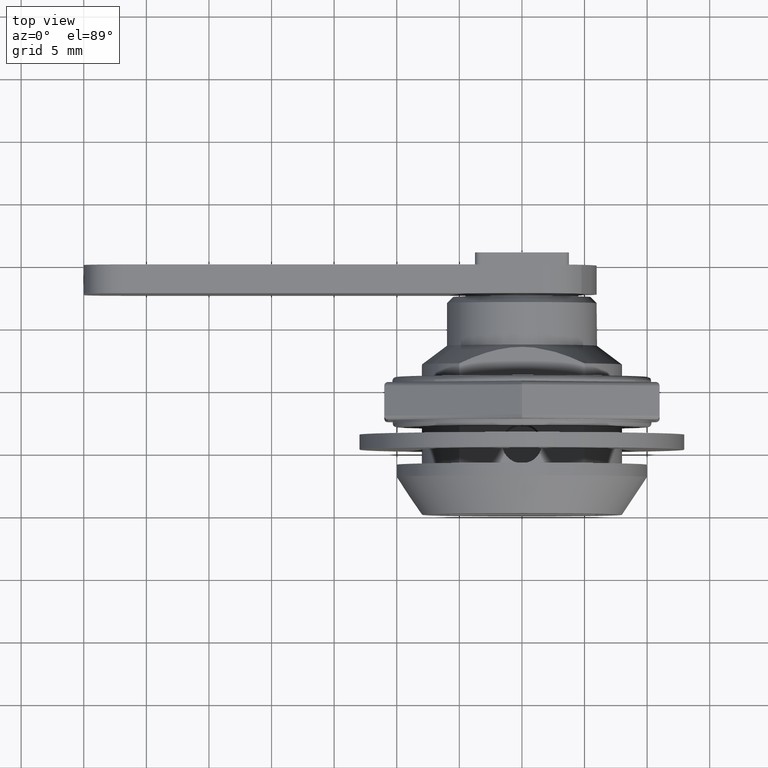
[diagram: clean part render]
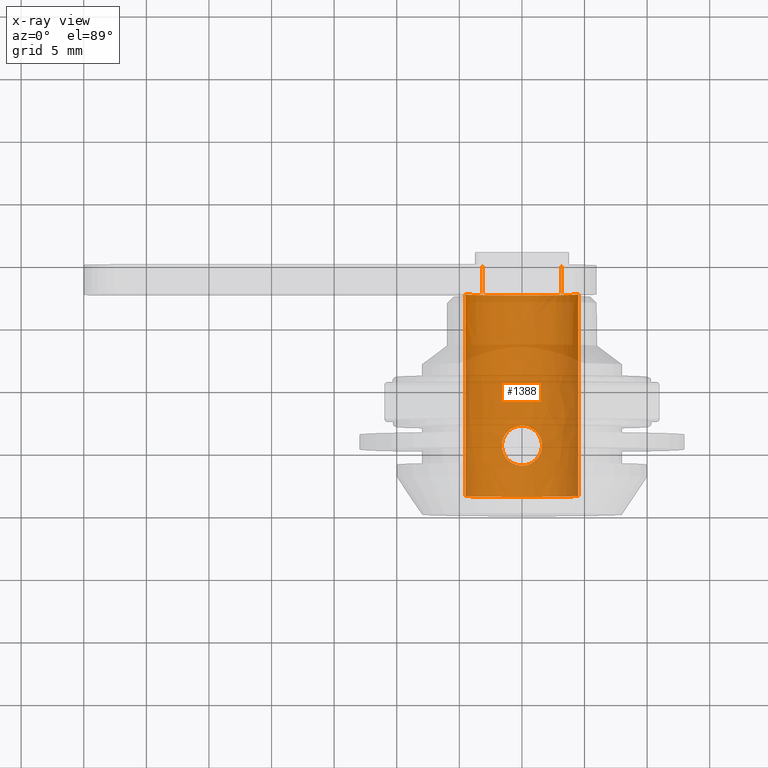
[diagram: x-ray — body ghosted, one internal face saturated and labeled with its STEP entity id]
A machine part, top view, then the same camera in x-ray: the body is ghosted and one INTERNAL B-rep face — a face not visible from any outside direction — is saturated and labeled: STEP entity #1388.
In plain terms, the highlighted face is a freeform B-spline surface patch.
Its self-contained STEP definition (entity closure, byte-faithful):
#519=CARTESIAN_POINT('',(-1.054356427544259,4.396522455043579,-4.374738155844502));
#520=VERTEX_POINT('',#519);
#521=CARTESIAN_POINT('',(-0.000590597931798,4.000000105548997,-4.499999961822872));
#522=VERTEX_POINT('',#521);
#523=CARTESIAN_POINT('',(-1.054356427544259,4.396522455043579,-4.374738155844502));
#524=CARTESIAN_POINT('',(-1.002881964715816,4.351411937511979,-4.387145458734838));
#525=CARTESIAN_POINT('',(-0.948596320963804,4.309698631075681,-4.399267054328381));
#526=CARTESIAN_POINT('',(-0.848251395131384,4.242370959246393,-4.419547673079403));
#527=CARTESIAN_POINT('',(-0.803185920776026,4.215213212073405,-4.427989136962553));
#528=CARTESIAN_POINT('',(-0.710607179049737,4.165502840584244,-4.443786078481630));
#529=CARTESIAN_POINT('',(-0.663391061197338,4.143079818799937,-4.451097179779044));
#530=CARTESIAN_POINT('',(-0.518997108087333,4.082928521187584,-4.471026780630580));
#531=CARTESIAN_POINT('',(-0.419100301706845,4.052244675719065,-4.481648089136178));
#532=CARTESIAN_POINT('',(-0.263470360488579,4.020956456879764,-4.492581238707986));
#533=CARTESIAN_POINT('',(-0.210643652376092,4.013050127579481,-4.495374136999204));
#534=CARTESIAN_POINT('',(-0.105626020991738,4.002619086723718,-4.499066930567387));
#535=CARTESIAN_POINT('',(-0.053111249833334,4.000019753307123,-4.499993045675499));
#536=CARTESIAN_POINT('',(-0.000590597931798,4.000000105548997,-4.499999961822872));
#537=B_SPLINE_CURVE_WITH_KNOTS('',3,(#523,#524,#525,#526,#527,#528,#529,#530,#531,#532,#533,#534,#535,#536),.UNSPECIFIED.,.F.,.U.,(4,2,2,2,2,2,4),(0.385583560682670,0.406249999999995,0.421874999999996,0.437499999999996,0.468749999999996,0.484374999999996,0.499999999999996),.UNSPECIFIED.);
#538=EDGE_CURVE('',#520,#522,#537,.T.);
#634=CARTESIAN_POINT('',(-1.141201278407970,6.721454611867972,-4.352890713591815));
#635=VERTEX_POINT('',#634);
#641=CARTESIAN_POINT('',(-1.084202E-015,7.200000000000109,-4.499999999999999));
#642=VERTEX_POINT('',#641);
#643=CARTESIAN_POINT('',(-1.084202E-015,7.200000000000109,-4.499999999999999));
#644=CARTESIAN_POINT('',(-0.106644526809201,7.200000000000111,-4.499999999999999));
#645=CARTESIAN_POINT('',(-0.211340840411174,7.189445826297849,-4.496216805880243));
#646=CARTESIAN_POINT('',(-0.365620001473151,7.158548286359256,-4.485418558350959));
#647=CARTESIAN_POINT('',(-0.416582237093022,7.145718663253454,-4.480963786126079));
#648=CARTESIAN_POINT('',(-0.517566352000592,7.114896701913454,-4.470425291190046));
#649=CARTESIAN_POINT('',(-0.567501928418370,7.096892199195922,-4.464339171896235));
#650=CARTESIAN_POINT('',(-0.712562194804528,7.036396149264295,-4.444298126867469));
#651=CARTESIAN_POINT('',(-0.804147896041606,6.987164153097158,-4.428448790463530));
#652=CARTESIAN_POINT('',(-0.934107053679783,6.900062909574958,-4.402203669116434));
#653=CARTESIAN_POINT('',(-0.976372913726798,6.868626985512403,-4.392994886969727));
#654=CARTESIAN_POINT('',(-1.056895239337034,6.802368890189837,-4.374320586864689));
#655=CARTESIAN_POINT('',(-1.095274853013518,6.767496637701044,-4.364836751521751));
#656=CARTESIAN_POINT('',(-1.134970150101099,6.727768788195634,-4.354521013265316));
#657=CARTESIAN_POINT('',(-1.138092617883042,6.724617913688502,-4.353705969310479));
#658=CARTESIAN_POINT('',(-1.141201278407970,6.721454611867972,-4.352890713591815));
#659=B_SPLINE_CURVE_WITH_KNOTS('',3,(#643,#644,#645,#646,#647,#648,#649,#650,#651,#652,#653,#654,#655,#656,#657,#658),.UNSPECIFIED.,.F.,.U.,(4,2,2,2,2,2,2,4),(0.0,0.031249999999999,0.046874999999999,0.062499999999999,0.093749999999998,0.109374999999998,0.124999999999997,0.126340144934590),.UNSPECIFIED.);
#660=EDGE_CURVE('',#642,#635,#659,.T.);
#662=CARTESIAN_POINT('',(-0.000590597931798,4.000000105548997,-4.499999961822872));
#663=CARTESIAN_POINT('',(0.051930285147234,3.999980715391873,-4.500006855451914));
#664=CARTESIAN_POINT('',(0.104457044242427,4.002541005625959,-4.499094550580655));
#665=CARTESIAN_POINT('',(0.209522477495320,4.012899863202513,-4.495426940856749));
#666=CARTESIAN_POINT('',(0.262371788086469,4.020771944571706,-4.492645815149589));
#667=CARTESIAN_POINT('',(0.418030499402142,4.051952414648476,-4.481748766255061));
#668=CARTESIAN_POINT('',(0.518146600431573,4.082607685458499,-4.471134040862291));
#669=CARTESIAN_POINT('',(0.663095891290723,4.142933538614220,-4.451143978425933));
#670=CARTESIAN_POINT('',(0.710698212336893,4.165540161514721,-4.443772961348111));
#671=CARTESIAN_POINT('',(0.803381156064385,4.215317474896600,-4.427955374561503));
#672=CARTESIAN_POINT('',(0.848087383229954,4.242264059448966,-4.419579780053146));
#673=CARTESIAN_POINT('',(0.977527514359135,4.329080516278437,-4.393425830267843));
#674=CARTESIAN_POINT('',(1.057629146482051,4.394863452334843,-4.374614776680451));
#675=CARTESIAN_POINT('',(1.168517387989092,4.505787730159891,-4.345805515428292));
#676=CARTESIAN_POINT('',(1.203669600767674,4.544598184684134,-4.336167968788291));
#677=CARTESIAN_POINT('',(1.269535212011252,4.624821121512672,-4.317343339001580));
#678=CARTESIAN_POINT('',(1.331263664901528,4.707942811565199,-4.298890519100937));
#679=CARTESIAN_POINT('',(1.384826989102733,4.796894028082074,-4.281697182385177));
#680=CARTESIAN_POINT('',(1.434230368696016,4.888868337515697,-4.265402654017855));
#681=CARTESIAN_POINT('',(1.456962853555373,4.936659869141036,-4.257665575919842));
#682=CARTESIAN_POINT('',(1.517536084723148,5.082189441053562,-4.236615616693988));
#683=CARTESIAN_POINT('',(1.548011574908382,5.182081390745575,-4.225416625073901));
#684=CARTESIAN_POINT('',(1.578989258018593,5.336292068635154,-4.213895382652161));
#685=CARTESIAN_POINT('',(1.586841102350622,5.388429157715676,-4.210934230383522));
#686=CARTESIAN_POINT('',(1.597386058154605,5.494242321188721,-4.206945395169550));
#687=CARTESIAN_POINT('',(1.600004673129959,5.547418445698825,-4.205946391240307));
#688=CARTESIAN_POINT('',(1.599990634834588,5.705589128244441,-4.205951731599148));
#689=CARTESIAN_POINT('',(1.589658864911282,5.810127083310666,-4.209925606529904));
#690=CARTESIAN_POINT('',(1.558572759537598,5.965572328972458,-4.221489450780870));
#691=CARTESIAN_POINT('',(1.545523146361554,6.017284991873046,-4.226301644146338));
#692=CARTESIAN_POINT('',(1.514768123053333,6.117924795470650,-4.237421965846078));
#693=CARTESIAN_POINT('',(1.479272208982997,6.216363347259560,-4.250070417865359));
#694=CARTESIAN_POINT('',(1.434516129388302,6.310559172555636,-4.265306623475321));
#695=CARTESIAN_POINT('',(1.385093128909376,6.402650538793942,-4.281611161932585));
#696=CARTESIAN_POINT('',(1.357887722047230,6.447862582543259,-4.290346016702222));
#697=CARTESIAN_POINT('',(1.270573156488064,6.578040874536375,-4.317332033662447));
#698=CARTESIAN_POINT('',(1.204772873708272,6.657961322593215,-4.336388440118227));
#699=CARTESIAN_POINT('',(1.094756606015902,6.767988841092395,-4.364967762628736));
#700=CARTESIAN_POINT('',(1.056143506275655,6.803042217681110,-4.374504631555820));
#701=CARTESIAN_POINT('',(0.975106208332557,6.869613155982020,-4.393278702725660));
#702=CARTESIAN_POINT('',(0.933259858356389,6.900662352134396,-4.402381608425642));
#703=CARTESIAN_POINT('',(0.803808132719424,6.987327847226440,-4.428503544479676));
#704=CARTESIAN_POINT('',(0.712329398016229,7.036529365361920,-4.444340681658329));
#705=CARTESIAN_POINT('',(0.566913239154308,7.097119509751455,-4.464415269187231));
#706=CARTESIAN_POINT('',(0.516837189747980,7.115139941672992,-4.470507927226786));
#707=CARTESIAN_POINT('',(0.416153974797904,7.145828448702947,-4.481001860897187));
#708=CARTESIAN_POINT('',(0.365315159257297,7.158616465239462,-4.485442301648410));
#709=CARTESIAN_POINT('',(0.211320851080557,7.189435529706214,-4.496213376375648));
#710=CARTESIAN_POINT('',(0.106644526809202,7.200000000000109,-4.500000000000000));
#711=CARTESIAN_POINT('',(-1.138412E-015,7.200000000000109,-4.499999999999999));
#712=B_SPLINE_CURVE_WITH_KNOTS('',3,(#662,#663,#664,#665,#666,#667,#668,#669,#670,#671,#672,#673,#674,#675,#676,#677,#678,#679,#680,#681,#682,#683,#684,#685,#686,#687,#688,#689,#690,#691,#692,#693,#694,#695,#696,#697,#698,#699,#700,#701,#702,#703,#704,#705,#706,#707,#708,#709,#710,#711),.UNSPECIFIED.,.F.,.U.,(4,2,2,2,2,2,2,2,1,2,2,2,2,2,2,2,1,2,2,2,2,2,2,2,2,4),(0.499999999999996,0.515624999999996,0.531249999999996,0.562499999999997,0.578124999999997,0.593749999999997,0.624999999999997,0.640624999999997,0.656249999999998,0.671874999999998,0.687499999999998,0.718749999999998,0.734374999999998,0.749999999999998,0.781249999999998,0.796874999999998,0.812499999999998,0.828124999999999,0.843749999999999,0.874999999999999,0.890624999999999,0.906249999999999,0.937499999999999,0.953125000000000,0.968750000000000,1.0),.UNSPECIFIED.);
#713=EDGE_CURVE('',#522,#642,#712,.T.);
#736=CARTESIAN_POINT('',(-1.141201278407970,6.721454611867972,-4.352890713591815));
#737=CARTESIAN_POINT('',(-1.210593877893924,6.650850319073463,-4.334698579833930));
#738=CARTESIAN_POINT('',(-1.273387756557766,6.573950768887507,-4.316469235462184));
#739=CARTESIAN_POINT('',(-1.387742781381710,6.403237767138266,-4.281110321753358));
#740=CARTESIAN_POINT('',(-1.436820990040375,6.311598363484674,-4.264661296558764));
#741=CARTESIAN_POINT('',(-1.496872398226868,6.167518312925613,-4.243797256427736));
#742=CARTESIAN_POINT('',(-1.514610594300624,6.118380140613603,-4.237477451111903));
#743=CARTESIAN_POINT('',(-1.545387141504528,6.017780963592505,-4.226350447869916));
#744=CARTESIAN_POINT('',(-1.558453543868293,5.966061459555799,-4.221532442415155));
#745=CARTESIAN_POINT('',(-1.589547246248479,5.810871282789563,-4.209966589529199));
#746=CARTESIAN_POINT('',(-1.599921978708118,5.706475822292407,-4.205976553084533));
#747=CARTESIAN_POINT('',(-1.600034155554577,5.548475385021163,-4.205933729465114));
#748=CARTESIAN_POINT('',(-1.597459519370076,5.495394445890469,-4.206915956975348));
#749=CARTESIAN_POINT('',(-1.586983669913865,5.389522805011184,-4.210878867190240));
#750=CARTESIAN_POINT('',(-1.579160114321292,5.337323801683541,-4.213829690707757));
#751=CARTESIAN_POINT('',(-1.548223441878427,5.182841252215593,-4.225337105059505));
#752=CARTESIAN_POINT('',(-1.517718209201503,5.082653774502266,-4.236550247997142));
#753=CARTESIAN_POINT('',(-1.456909799385761,4.936540551715911,-4.257682275922215));
#754=CARTESIAN_POINT('',(-1.434316884753321,4.889062213525960,-4.265371376025918));
#755=CARTESIAN_POINT('',(-1.385006667281463,4.797221920952092,-4.281636857007294));
#756=CARTESIAN_POINT('',(-1.331462803797769,4.708235514602065,-4.298827737251188));
#757=CARTESIAN_POINT('',(-1.269526505345676,4.624806770432523,-4.317345492518900));
#758=CARTESIAN_POINT('',(-1.203295226177778,4.544169090421435,-4.336271479341644));
#759=CARTESIAN_POINT('',(-1.167983658505234,4.505244218918500,-4.345945177633516));
#760=CARTESIAN_POINT('',(-1.106341106855537,4.443616338991190,-4.361955372519377));
#761=CARTESIAN_POINT('',(-1.080717397530118,4.419623920588284,-4.368384229013051));
#762=CARTESIAN_POINT('',(-1.054356427544259,4.396522455043579,-4.374738155844502));
#763=B_SPLINE_CURVE_WITH_KNOTS('',3,(#736,#737,#738,#739,#740,#741,#742,#743,#744,#745,#746,#747,#748,#749,#750,#751,#752,#753,#754,#755,#756,#757,#758,#759,#760,#761,#762),.UNSPECIFIED.,.F.,.U.,(4,2,2,2,2,2,2,2,2,2,1,2,2,4),(0.126340144934590,0.156249999999997,0.187499999999996,0.203124999999996,0.218749999999995,0.249999999999995,0.265624999999995,0.281249999999995,0.312499999999995,0.328124999999995,0.343749999999995,0.359374999999995,0.374999999999995,0.385583560682670),.UNSPECIFIED.);
#764=EDGE_CURVE('',#635,#520,#763,.T.);
#1071=CARTESIAN_POINT('',(4.496759450483429,1.500000000000113,-0.170746726045739));
#1072=VERTEX_POINT('',#1071);
#1090=CARTESIAN_POINT('',(4.496759211514306,17.600000000000001,-0.170753019478084));
#1091=VERTEX_POINT('',#1090);
#1092=CARTESIAN_POINT('',(4.496759211514306,17.600000000000001,-0.170753019478084));
#1093=CARTESIAN_POINT('',(4.496759450483429,1.500000000000113,-0.170746726045739));
#1094=QUASI_UNIFORM_CURVE('',1,(#1092,#1093),.UNSPECIFIED.,.F.,.U.);
#1095=EDGE_CURVE('',#1091,#1072,#1094,.T.);
#1185=CARTESIAN_POINT('',(-4.496759211514306,17.600000000000001,0.170753019478084));
#1186=VERTEX_POINT('',#1185);
#1200=CARTESIAN_POINT('',(-4.496759450483429,1.500000000000113,0.170746726045738));
#1201=VERTEX_POINT('',#1200);
#1202=CARTESIAN_POINT('',(-4.496759211514306,17.600000000000001,0.170753019478084));
#1203=CARTESIAN_POINT('',(-4.496759450483429,1.500000000000113,0.170746726045738));
#1204=QUASI_UNIFORM_CURVE('',1,(#1202,#1203),.UNSPECIFIED.,.F.,.U.);
#1205=EDGE_CURVE('',#1186,#1201,#1204,.T.);
#1229=CARTESIAN_POINT('',(-4.496759233757365,20.359999999999999,0.170752433709924));
#1230=CARTESIAN_POINT('',(-4.667511667467289,20.360000000000003,-4.326006800047441));
#1231=CARTESIAN_POINT('',(-0.170752433709924,20.359999999999999,-4.496759233757365));
#1232=CARTESIAN_POINT('',(4.326006800047440,20.360000000000003,-4.667511667467289));
#1233=CARTESIAN_POINT('',(4.496759233757365,20.359999999999999,-0.170752433709924));
#1234=CARTESIAN_POINT('',(-4.496759233757365,1.028500000000118,0.170752433709924));
#1235=CARTESIAN_POINT('',(-4.667511667467289,1.028500000000118,-4.326006800047441));
#1236=CARTESIAN_POINT('',(-0.170752433709924,1.028500000000118,-4.496759233757365));
#1237=CARTESIAN_POINT('',(4.326006800047440,1.028500000000118,-4.667511667467289));
#1238=CARTESIAN_POINT('',(4.496759233757365,1.028500000000118,-0.170752433709924));
#1246=(BOUNDED_SURFACE()B_SPLINE_SURFACE(2,1,((#1229,#1234),(#1230,#1235),(#1231,#1236),(#1232,#1237),(#1233,#1238)),.UNSPECIFIED.,.F.,.F.,.U.)B_SPLINE_SURFACE_WITH_KNOTS((3,2,3),(2,2),(0.0,7.455844122715709,14.911688245431421),(0.0,19.331499999999892),.UNSPECIFIED.)GEOMETRIC_REPRESENTATION_ITEM()RATIONAL_B_SPLINE_SURFACE(((1.0,1.0),(0.707106781186548,0.707106781186548),(1.0,1.0),(0.707106781186548,0.707106781186548),(1.0,1.0)))REPRESENTATION_ITEM('')SURFACE());
#1247=CARTESIAN_POINT('',(0.0,1.500000000000115,-4.500000000000000));
#1248=VERTEX_POINT('',#1247);
#1249=CARTESIAN_POINT('',(0.0,1.500000000000115,-4.500000000000000));
#1250=CARTESIAN_POINT('',(4.332373111637863,1.500000000000115,-4.500000000000001));
#1251=CARTESIAN_POINT('',(4.496759450483429,1.500000000000113,-0.170746726045739));
#1259=(BOUNDED_CURVE()B_SPLINE_CURVE(2,(#1249,#1250,#1251),.UNSPECIFIED.,.F.,.U.)B_SPLINE_CURVE_WITH_KNOTS((3,3),(0.0,0.243342356394768),.UNSPECIFIED.)CURVE()GEOMETRIC_REPRESENTATION_ITEM()RATIONAL_B_SPLINE_CURVE((1.0,0.714906695847545,0.984815603093719))REPRESENTATION_ITEM(''));
#1260=EDGE_CURVE('',#1248,#1072,#1259,.T.);
#1261=ORIENTED_EDGE('',*,*,#1260,.F.);
#1262=CARTESIAN_POINT('',(-4.496759450483429,1.500000000000113,0.170746726045738));
#1263=CARTESIAN_POINT('',(-4.499999999999999,1.500000000000116,0.085404113718395));
#1264=CARTESIAN_POINT('',(-4.500000000000000,1.500000000000115,-3.061516E-016));
#1265=CARTESIAN_POINT('',(-4.500000000000000,1.500000000000116,-4.500000000000000));
#1266=CARTESIAN_POINT('',(0.0,1.500000000000115,-4.500000000000000));
#1274=(BOUNDED_CURVE()B_SPLINE_CURVE(2,(#1262,#1263,#1264,#1265,#1266),.UNSPECIFIED.,.F.,.U.)B_SPLINE_CURVE_WITH_KNOTS((3,2,3),(0.743342356394768,0.750000000000000,1.0),.UNSPECIFIED.)CURVE()GEOMETRIC_REPRESENTATION_ITEM()RATIONAL_B_SPLINE_CURVE((0.984815603093719,0.992200085339003,1.0,0.707106781186547,1.0))REPRESENTATION_ITEM(''));
#1275=EDGE_CURVE('',#1201,#1248,#1274,.T.);
#1276=ORIENTED_EDGE('',*,*,#1275,.F.);
#1277=ORIENTED_EDGE('',*,*,#1205,.F.);
#1278=CARTESIAN_POINT('',(-3.200000000000000,17.600000000000001,-3.163858403911275));
#1279=VERTEX_POINT('',#1278);
#1280=CARTESIAN_POINT('',(-4.496759211514307,17.599999999999998,0.170753019478084));
#1281=CARTESIAN_POINT('',(-4.570737991083675,17.600000000000001,-1.777462108158854));
#1282=CARTESIAN_POINT('',(-3.200000000000000,17.600000000000001,-3.163858403911275));
#1290=(BOUNDED_CURVE()B_SPLINE_CURVE(2,(#1280,#1281,#1282),.UNSPECIFIED.,.F.,.U.)B_SPLINE_CURVE_WITH_KNOTS((3,3),(0.476904494265826,1.0),.UNSPECIFIED.)CURVE()GEOMETRIC_REPRESENTATION_ITEM()RATIONAL_B_SPLINE_CURVE((0.855863743600290,0.848883520565683,1.0))REPRESENTATION_ITEM(''));
#1291=EDGE_CURVE('',#1186,#1279,#1290,.T.);
#1292=ORIENTED_EDGE('',*,*,#1291,.T.);
#1293=CARTESIAN_POINT('',(-3.200000000000000,19.899999999999999,-3.163858403911270));
#1294=VERTEX_POINT('',#1293);
#1295=CARTESIAN_POINT('',(-3.200000000000000,19.899999999999999,-3.163858403911270));
#1296=CARTESIAN_POINT('',(-3.200000000000000,17.600000000000001,-3.163858403911275));
#1297=QUASI_UNIFORM_CURVE('',1,(#1295,#1296),.UNSPECIFIED.,.F.,.U.);
#1298=EDGE_CURVE('',#1294,#1279,#1297,.T.);
#1299=ORIENTED_EDGE('',*,*,#1298,.F.);
#1300=CARTESIAN_POINT('',(-3.163858403911280,19.899999999999999,-3.200000000000000));
#1301=VERTEX_POINT('',#1300);
#1302=CARTESIAN_POINT('',(-3.200000000000002,19.899999999999999,-3.163858403911272));
#1303=CARTESIAN_POINT('',(-3.182031829550783,19.900000000000002,-3.182031829550807));
#1304=CARTESIAN_POINT('',(-3.163858403911279,19.899999999999999,-3.199999999999996));
#1312=(BOUNDED_CURVE()B_SPLINE_CURVE(2,(#1302,#1303,#1304),.UNSPECIFIED.,.F.,.U.)CURVE()GEOMETRIC_REPRESENTATION_ITEM()QUASI_UNIFORM_CURVE()RATIONAL_B_SPLINE_CURVE((1.0,0.999983873759258,1.0))REPRESENTATION_ITEM(''));
#1313=EDGE_CURVE('',#1294,#1301,#1312,.T.);
#1314=ORIENTED_EDGE('',*,*,#1313,.T.);
#1315=CARTESIAN_POINT('',(-3.163858403911275,17.600000000000001,-3.200000000000000));
#1316=VERTEX_POINT('',#1315);
#1317=CARTESIAN_POINT('',(-3.163858403911280,19.899999999999999,-3.200000000000000));
#1318=CARTESIAN_POINT('',(-3.163858403911275,17.600000000000001,-3.200000000000000));
#1319=QUASI_UNIFORM_CURVE('',1,(#1317,#1318),.UNSPECIFIED.,.F.,.U.);
#1320=EDGE_CURVE('',#1301,#1316,#1319,.T.);
#1321=ORIENTED_EDGE('',*,*,#1320,.T.);
#1322=CARTESIAN_POINT('',(3.163858403911270,17.600000000000001,-3.200000000000000));
#1323=VERTEX_POINT('',#1322);
#1324=CARTESIAN_POINT('',(-3.163858403911276,17.600000000000001,-3.199999999999999));
#1325=CARTESIAN_POINT('',(-4.336809E-015,17.600000000000005,-6.328124999999998));
#1326=CARTESIAN_POINT('',(3.163858403911272,17.600000000000001,-3.200000000000003));
#1334=(BOUNDED_CURVE()B_SPLINE_CURVE(2,(#1324,#1325,#1326),.UNSPECIFIED.,.F.,.U.)CURVE()GEOMETRIC_REPRESENTATION_ITEM()QUASI_UNIFORM_CURVE()RATIONAL_B_SPLINE_CURVE((1.0,0.711111111111111,1.0))REPRESENTATION_ITEM(''));
#1335=EDGE_CURVE('',#1316,#1323,#1334,.T.);
#1336=ORIENTED_EDGE('',*,*,#1335,.T.);
#1337=CARTESIAN_POINT('',(3.163858403911270,19.899999999999999,-3.200000000000000));
#1338=VERTEX_POINT('',#1337);
#1339=CARTESIAN_POINT('',(3.163858403911270,19.899999999999999,-3.200000000000000));
#1340=CARTESIAN_POINT('',(3.163858403911270,17.600000000000001,-3.200000000000000));
#1341=QUASI_UNIFORM_CURVE('',1,(#1339,#1340),.UNSPECIFIED.,.F.,.U.);
#1342=EDGE_CURVE('',#1338,#1323,#1341,.T.);
#1343=ORIENTED_EDGE('',*,*,#1342,.F.);
#1344=CARTESIAN_POINT('',(3.200000000000000,19.899999999999999,-3.163858403911275));
#1345=VERTEX_POINT('',#1344);
#1346=CARTESIAN_POINT('',(3.163858403911273,19.899999999999999,-3.200000000000002));
#1347=CARTESIAN_POINT('',(3.182031829550794,19.900000000000002,-3.182031829550799));
#1348=CARTESIAN_POINT('',(3.200000000000000,19.899999999999999,-3.163858403911275));
#1356=(BOUNDED_CURVE()B_SPLINE_CURVE(2,(#1346,#1347,#1348),.UNSPECIFIED.,.F.,.U.)CURVE()GEOMETRIC_REPRESENTATION_ITEM()QUASI_UNIFORM_CURVE()RATIONAL_B_SPLINE_CURVE((1.0,0.999983873759258,1.0))REPRESENTATION_ITEM(''));
#1357=EDGE_CURVE('',#1338,#1345,#1356,.T.);
#1358=ORIENTED_EDGE('',*,*,#1357,.T.);
#1359=CARTESIAN_POINT('',(3.200000000000000,17.600000000000001,-3.163858403911275));
#1360=VERTEX_POINT('',#1359);
#1361=CARTESIAN_POINT('',(3.200000000000000,19.899999999999999,-3.163858403911275));
#1362=CARTESIAN_POINT('',(3.200000000000000,17.600000000000001,-3.163858403911275));
#1363=QUASI_UNIFORM_CURVE('',1,(#1361,#1362),.UNSPECIFIED.,.F.,.U.);
#1364=EDGE_CURVE('',#1345,#1360,#1363,.T.);
#1365=ORIENTED_EDGE('',*,*,#1364,.T.);
#1366=CARTESIAN_POINT('',(3.200000000000000,17.600000000000001,-3.163858403911275));
#1367=CARTESIAN_POINT('',(4.430356769410655,17.600000000000009,-1.919446941866434));
#1368=CARTESIAN_POINT('',(4.496759211514307,17.599999999999998,-0.170753019478084));
#1376=(BOUNDED_CURVE()B_SPLINE_CURVE(2,(#1366,#1367,#1368),.UNSPECIFIED.,.F.,.U.)B_SPLINE_CURVE_WITH_KNOTS((3,3),(0.0,0.476904494265826),.UNSPECIFIED.)CURVE()GEOMETRIC_REPRESENTATION_ITEM()RATIONAL_B_SPLINE_CURVE((1.0,0.862227590545428,0.855863743600290))REPRESENTATION_ITEM(''));
#1377=EDGE_CURVE('',#1360,#1091,#1376,.T.);
#1378=ORIENTED_EDGE('',*,*,#1377,.T.);
#1379=ORIENTED_EDGE('',*,*,#1095,.T.);
#1380=EDGE_LOOP('',(#1261,#1276,#1277,#1292,#1299,#1314,#1321,#1336,#1343,#1358,#1365,#1378,#1379));
#1381=FACE_OUTER_BOUND('',#1380,.T.);
#1382=ORIENTED_EDGE('',*,*,#713,.T.);
#1383=ORIENTED_EDGE('',*,*,#660,.T.);
#1384=ORIENTED_EDGE('',*,*,#764,.T.);
#1385=ORIENTED_EDGE('',*,*,#538,.T.);
#1386=EDGE_LOOP('',(#1382,#1383,#1384,#1385));
#1387=FACE_BOUND('',#1386,.T.);
#1388=ADVANCED_FACE('',(#1381,#1387),#1246,.T.);